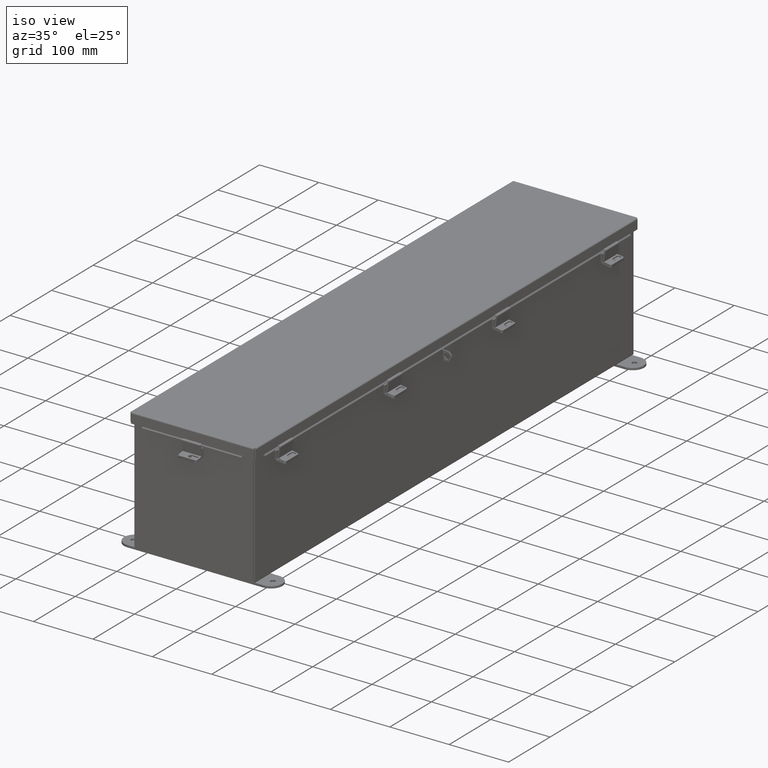
[diagram: clean part render]
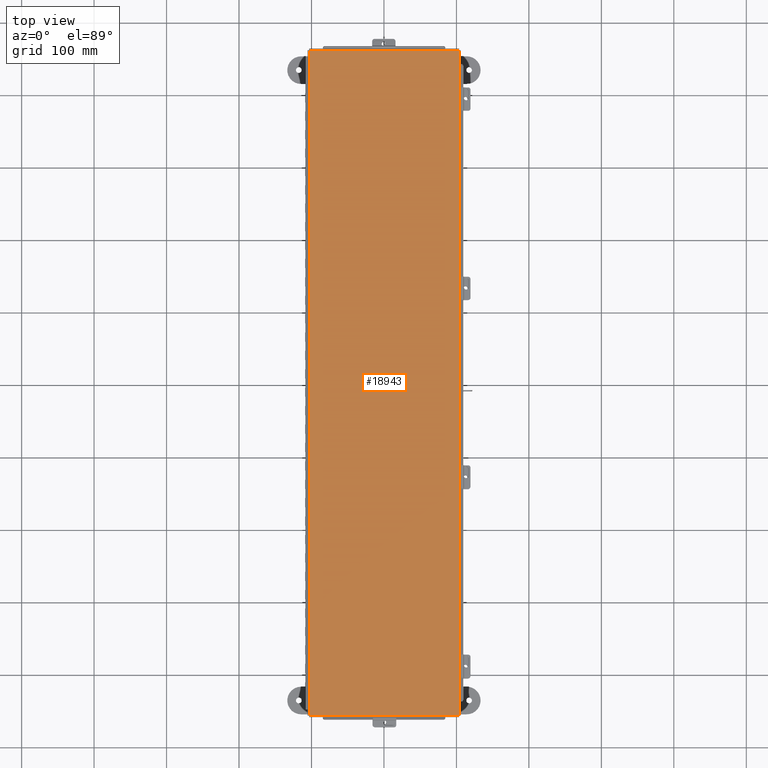
[diagram: tour spotlight — one face highlighted and labeled with its STEP entity id]
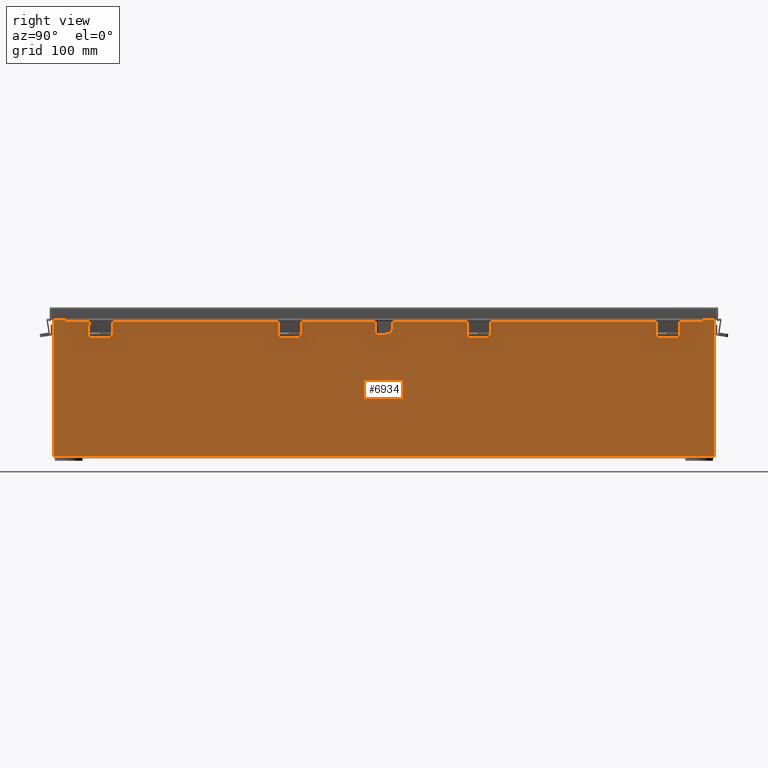
[diagram: tour spotlight — one face highlighted and labeled with its STEP entity id]
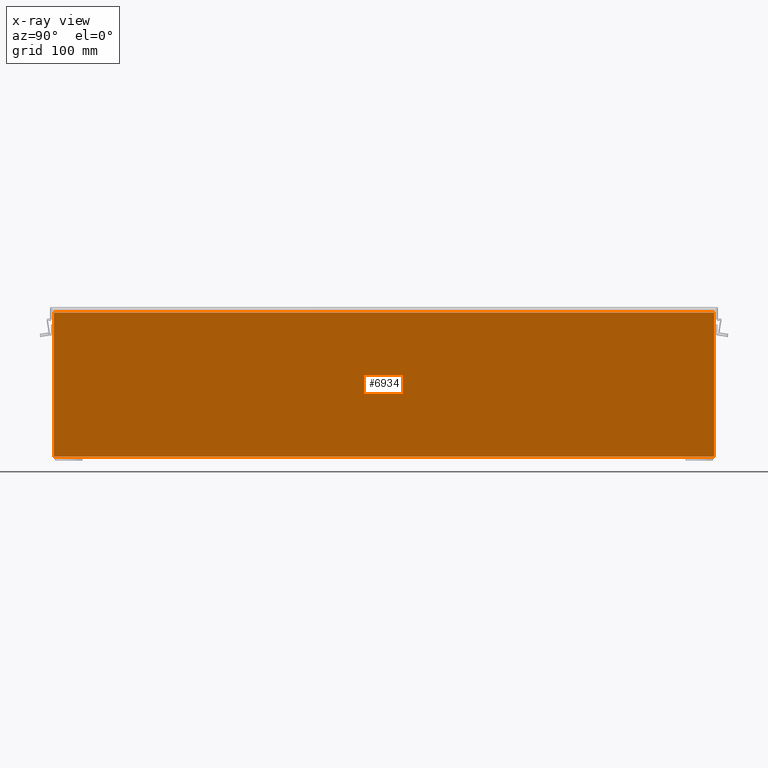
[diagram: x-ray of the same camera — body ghosted, this tour face saturated]
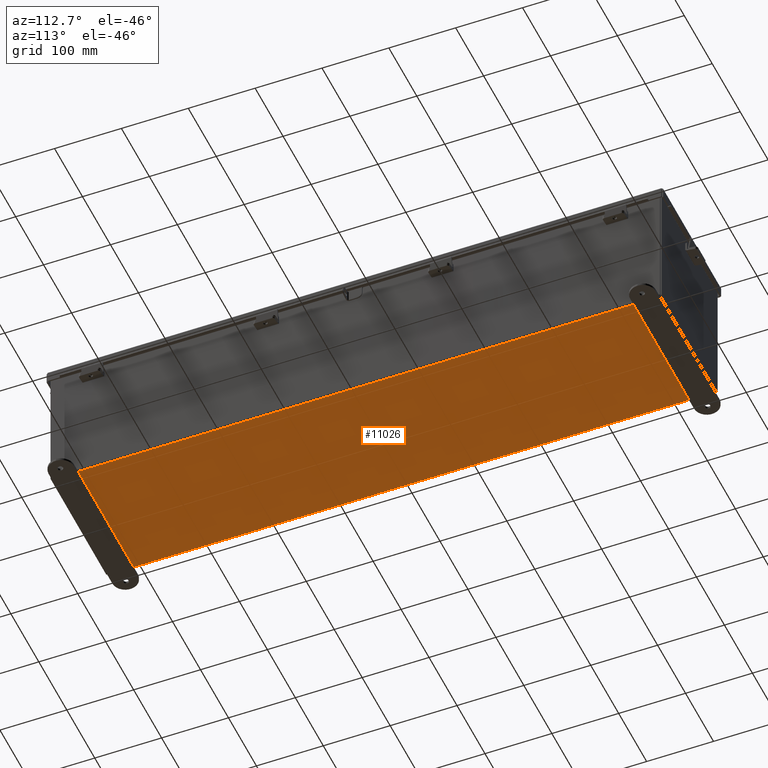
[diagram: tour spotlight — one face highlighted and labeled with its STEP entity id]
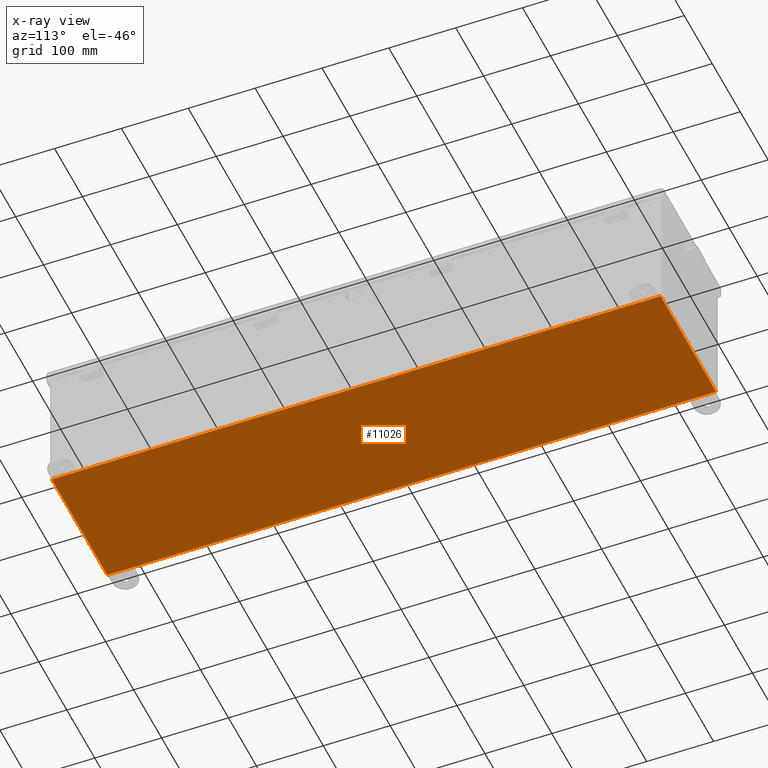
[diagram: x-ray of the same camera — body ghosted, this tour face saturated]
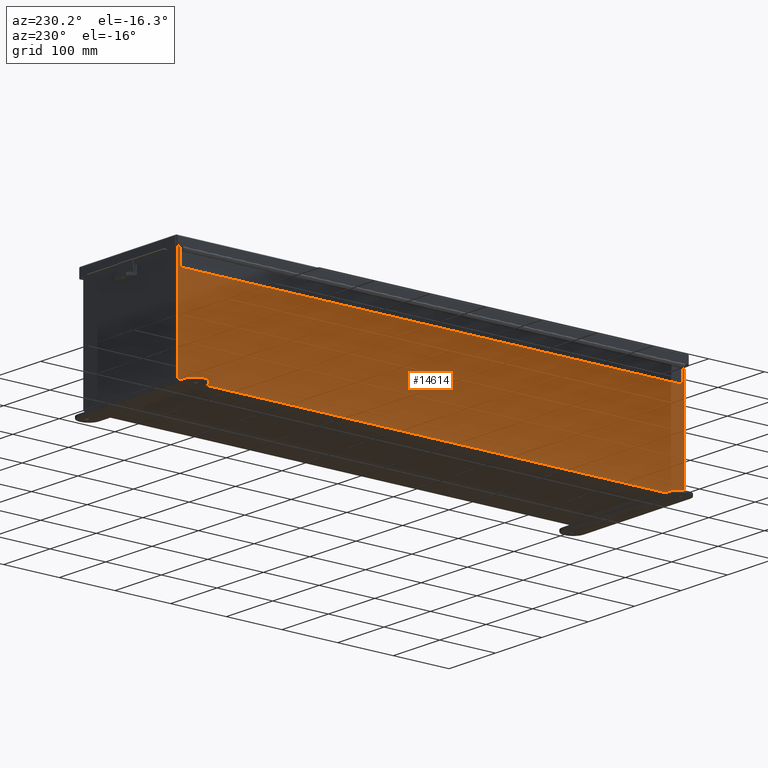
[diagram: tour spotlight — one face highlighted and labeled with its STEP entity id]
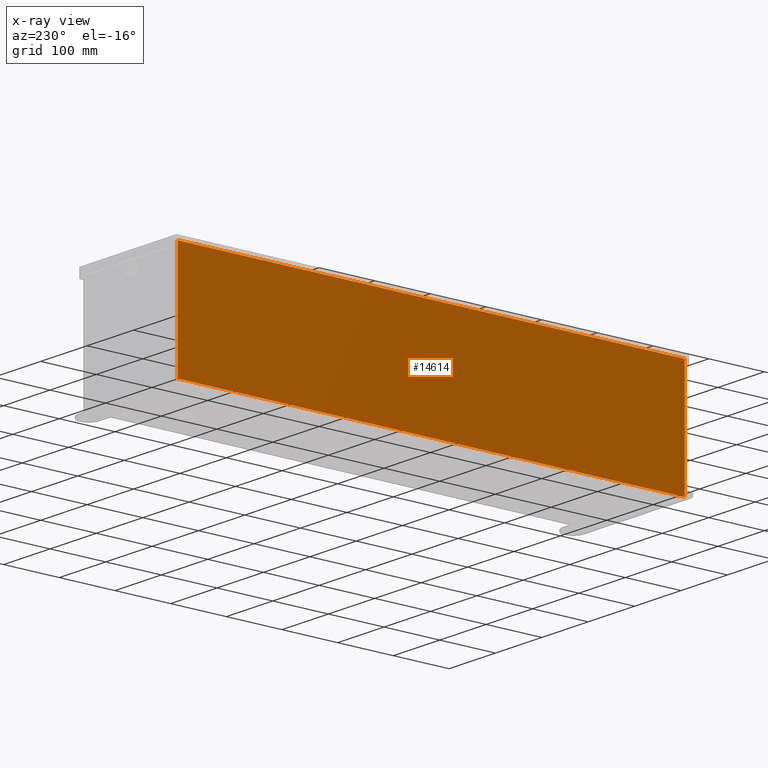
[diagram: x-ray of the same camera — body ghosted, this tour face saturated]
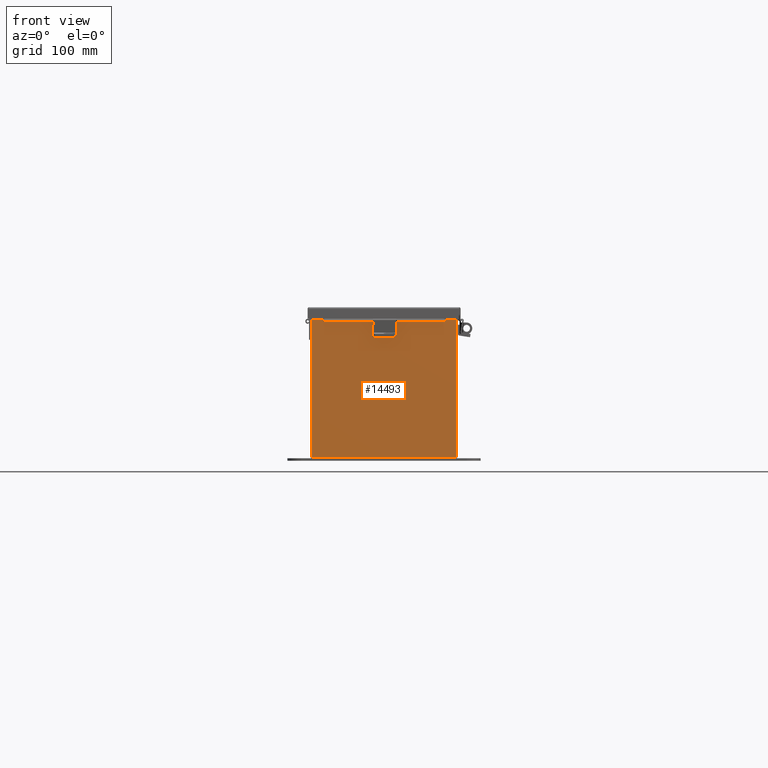
[diagram: tour spotlight — one face highlighted and labeled with its STEP entity id]
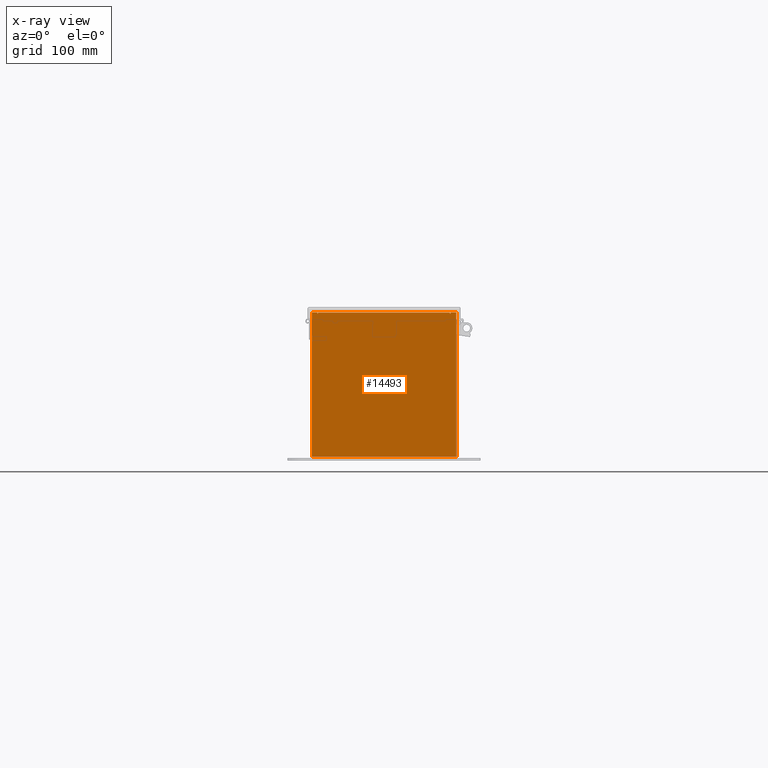
[diagram: x-ray of the same camera — body ghosted, this tour face saturated]
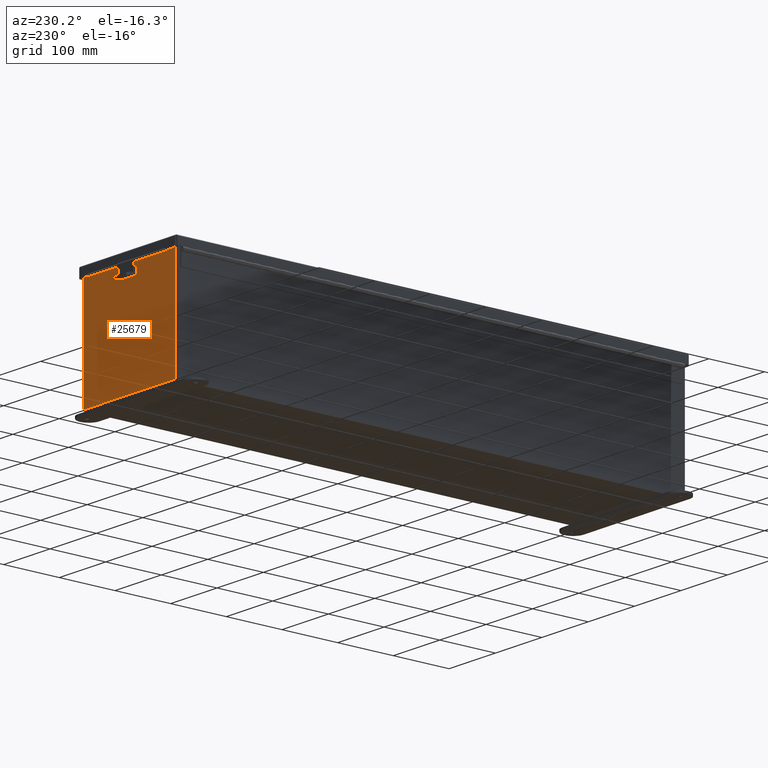
[diagram: tour spotlight — one face highlighted and labeled with its STEP entity id]
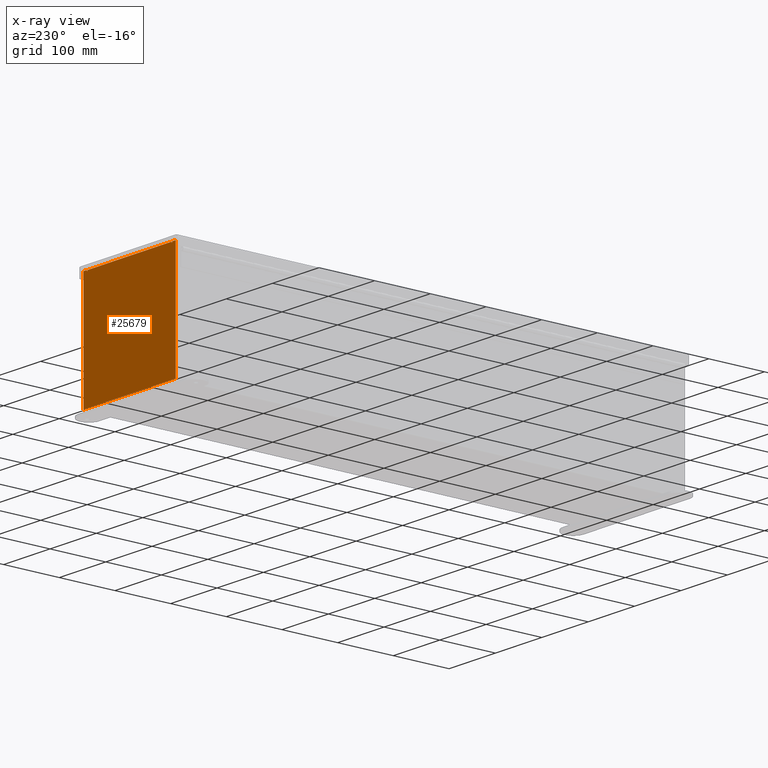
[diagram: x-ray of the same camera — body ghosted, this tour face saturated]
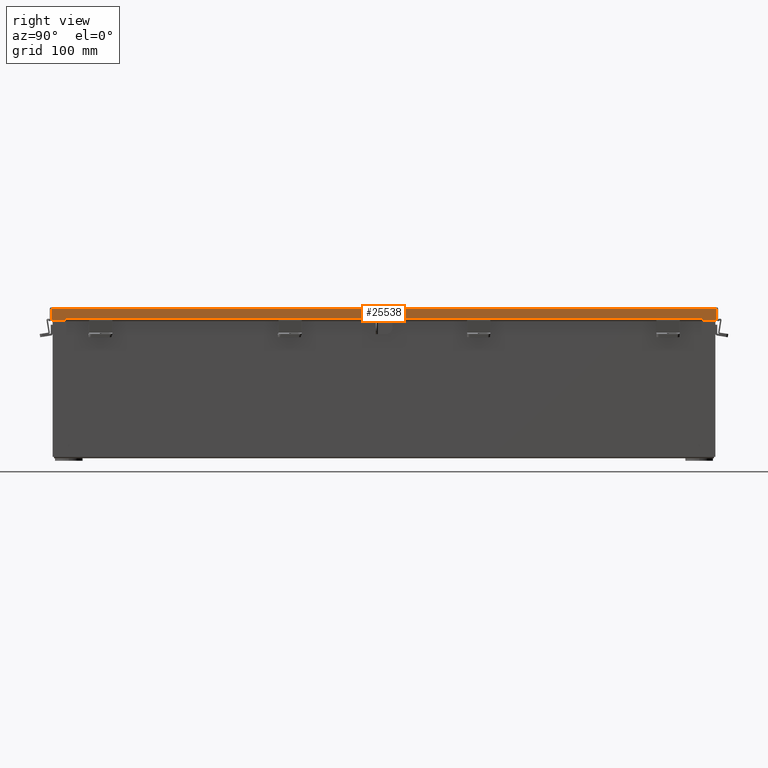
[diagram: tour spotlight — one face highlighted and labeled with its STEP entity id]
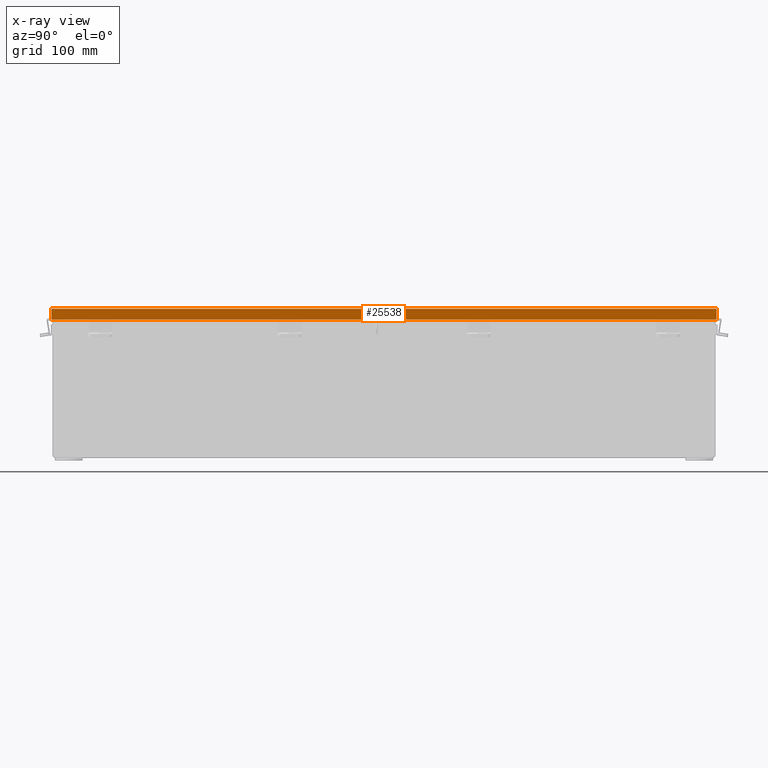
[diagram: x-ray of the same camera — body ghosted, this tour face saturated]
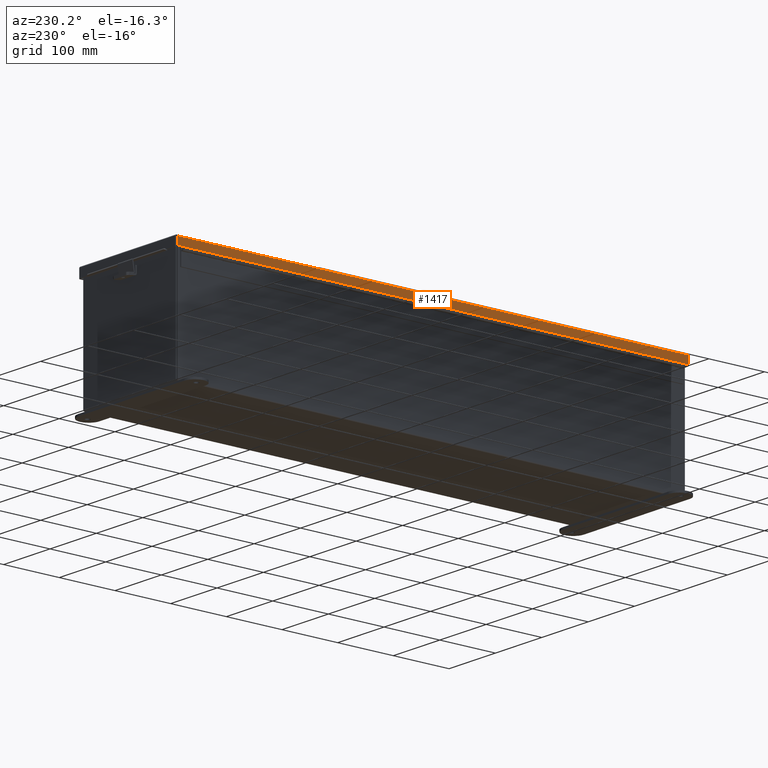
[diagram: tour spotlight — one face highlighted and labeled with its STEP entity id]
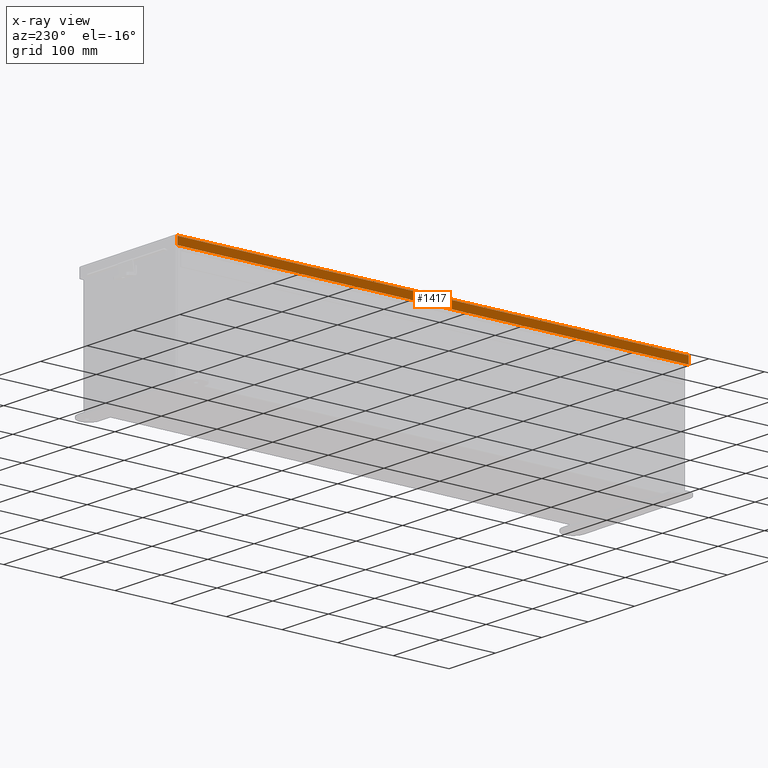
[diagram: x-ray of the same camera — body ghosted, this tour face saturated]
A machine part: a face-by-face anatomy tour. The part has 1160 B-rep faces; the first image is the clean iso view, then the 8 largest visible faces are spotlighted one at a time (largest first), each with its STEP entity span.

Face 1 — top view, entity #18943. In plain terms, the highlighted planar face has unit normal (-0, 0, 1).
Definition (entity closure, byte-faithful):
#204 = VECTOR ( 'NONE', #6262, 39.37007874015748100 ) ;
#949 = CARTESIAN_POINT ( 'NONE',  ( -4.068550000000051600, -18.06854999999997300, -0.07469999999999907300 ) ) ;
#1108 = VECTOR ( 'NONE', #22519, 39.37007874015748100 ) ;
#1423 = CARTESIAN_POINT ( 'NONE',  ( 4.074478932188162300, -18.06854999999997000, -0.07470000000000015500 ) ) ;
#1862 = FACE_OUTER_BOUND ( 'NONE', #28355, .T. ) ;
#2316 = EDGE_CURVE ( 'NONE', #9988, #11167, #7880, .T. ) ;
#3558 = LINE ( 'NONE', #1423, #26515 ) ;
#3682 = VECTOR ( 'NONE', #9171, 39.37007874015748100 ) ;
#4677 = DIRECTION ( 'NONE',  ( 3.944304526105027500E-031, -2.393699809279988100E-029, -1.000000000000000000 ) ) ;
#6262 = DIRECTION ( 'NONE',  ( 1.340736027574110600E-030, -1.000000000000000000, -2.396164999608823400E-029 ) ) ;
#7405 = AXIS2_PLACEMENT_3D ( 'NONE', #25231, #4677, #20688 ) ;
#7704 = ORIENTED_EDGE ( 'NONE', *, *, #11254, .T. ) ;
#7880 = LINE ( 'NONE', #15617, #1108 ) ;
#8506 = EDGE_CURVE ( 'NONE', #11167, #25861, #28062, .T. ) ;
#9171 = DIRECTION ( 'NONE',  ( 1.000000000000000000, -1.242128414421549100E-030, 3.944304526105027500E-031 ) ) ;
#9397 = ORIENTED_EDGE ( 'NONE', *, *, #8506, .T. ) ;
#9988 = VERTEX_POINT ( 'NONE', #949 ) ;
#10899 = ORIENTED_EDGE ( 'NONE', *, *, #21700, .T. ) ;
#11167 = VERTEX_POINT ( 'NONE', #15007 ) ;
#11254 = EDGE_CURVE ( 'NONE', #25861, #28391, #18504, .T. ) ;
#11451 = PLANE ( 'NONE',  #7405 ) ;
#15007 = CARTESIAN_POINT ( 'NONE',  ( -4.068550000000051600, 18.06855000000003000, -0.07470000000000015500 ) ) ;
#15617 = CARTESIAN_POINT ( 'NONE',  ( -4.068550000000051600, -18.07447893218810400, -0.07469999999999907300 ) ) ;
#17462 = DIRECTION ( 'NONE',  ( -1.000000000000000000, 1.242128414421549100E-030, -3.944304526105027500E-031 ) ) ;
#18504 = LINE ( 'NONE', #29214, #204 ) ;
#18943 = ADVANCED_FACE ( 'NONE', ( #1862 ), #11451, .T. ) ;
#19112 = ORIENTED_EDGE ( 'NONE', *, *, #2316, .T. ) ;
#20688 = DIRECTION ( 'NONE',  ( -1.000000000000000000, 1.242128414421549100E-030, -3.944304526105027500E-031 ) ) ;
#21700 = EDGE_CURVE ( 'NONE', #28391, #9988, #3558, .T. ) ;
#22519 = DIRECTION ( 'NONE',  ( -1.340736027574110600E-030, 1.000000000000000000, 2.396164999608823400E-029 ) ) ;
#23031 = CARTESIAN_POINT ( 'NONE',  ( -4.074478932188187100, 18.06855000000003000, -0.07470000000000015500 ) ) ;
#25231 = CARTESIAN_POINT ( 'NONE',  ( 0.0000000000000000000, 0.0000000000000000000, -0.07470000000000015500 ) ) ;
#25861 = VERTEX_POINT ( 'NONE', #26134 ) ;
#26134 = CARTESIAN_POINT ( 'NONE',  ( 4.068550000000027600, 18.06855000000003000, -0.07470000000000125200 ) ) ;
#26515 = VECTOR ( 'NONE', #17462, 39.37007874015748100 ) ;
#28062 = LINE ( 'NONE', #23031, #3682 ) ;
#28355 = EDGE_LOOP ( 'NONE', ( #9397, #7704, #10899, #19112 ) ) ;
#28391 = VERTEX_POINT ( 'NONE', #29418 ) ;
#29214 = CARTESIAN_POINT ( 'NONE',  ( 4.068550000000027600, 18.07447893218816800, -0.07470000000000125200 ) ) ;
#29418 = CARTESIAN_POINT ( 'NONE',  ( 4.068550000000027600, -18.06854999999997000, -0.07470000000000015500 ) ) ;

Face 2 — right view, entity #6934. An x-ray twin of the same camera follows (body ghosted, this face saturated) — the face is partly hidden behind the body. In plain terms, the highlighted planar face has unit normal (-1, 0, 0).
Definition (entity closure, byte-faithful):
#405 = CARTESIAN_POINT ( 'NONE',  ( 4.000000000000001800, -17.92530000000001100, 0.01299999999999984300 ) ) ;
#1727 = DIRECTION ( 'NONE',  ( -3.479795166820706300E-015, 0.0000000000000000000, -1.000000000000000000 ) ) ;
#2047 = AXIS2_PLACEMENT_3D ( 'NONE', #27385, #9197, #25282 ) ;
#3303 = EDGE_LOOP ( 'NONE', ( #5680, #19615, #24678, #10176 ) ) ;
#4702 = CARTESIAN_POINT ( 'NONE',  ( 4.000000000000001800, 17.92529999999999300, -1.417999849211356600E-014 ) ) ;
#4844 = CARTESIAN_POINT ( 'NONE',  ( 4.000000000000001800, -17.92530000000001100, 0.01300000000000011600 ) ) ;
#5435 = VECTOR ( 'NONE', #18756, 39.37007874015748100 ) ;
#5680 = ORIENTED_EDGE ( 'NONE', *, *, #25814, .T. ) ;
#6934 = ADVANCED_FACE ( 'NONE', ( #15175 ), #18355, .F. ) ;
#7689 = EDGE_CURVE ( 'NONE', #15383, #9812, #29466, .T. ) ;
#7929 = EDGE_CURVE ( 'NONE', #17127, #9812, #11492, .T. ) ;
#8493 = CARTESIAN_POINT ( 'NONE',  ( 4.000000000000001800, -17.92530000000001100, -1.417999849211356600E-014 ) ) ;
#8497 = EDGE_CURVE ( 'NONE', #17127, #29572, #28768, .T. ) ;
#9197 = DIRECTION ( 'NONE',  ( -1.000000000000000000, 0.0000000000000000000, 3.479795166820705900E-015 ) ) ;
#9812 = VERTEX_POINT ( 'NONE', #4844 ) ;
#9870 = CARTESIAN_POINT ( 'NONE',  ( 4.000000000000029300, 17.92529999999999300, 7.837599999999999200 ) ) ;
#10176 = ORIENTED_EDGE ( 'NONE', *, *, #8497, .T. ) ;
#11492 = LINE ( 'NONE', #405, #5435 ) ;
#15175 = FACE_OUTER_BOUND ( 'NONE', #3303, .T. ) ;
#15206 = CARTESIAN_POINT ( 'NONE',  ( 4.000000000000029300, -17.92530000000001100, 7.837599999999999200 ) ) ;
#15383 = VERTEX_POINT ( 'NONE', #15206 ) ;
#16337 = LINE ( 'NONE', #9870, #22431 ) ;
#17127 = VERTEX_POINT ( 'NONE', #25226 ) ;
#18355 = PLANE ( 'NONE',  #2047 ) ;
#18430 = DIRECTION ( 'NONE',  ( 3.479795166820706300E-015, 0.0000000000000000000, 1.000000000000000000 ) ) ;
#18756 = DIRECTION ( 'NONE',  ( -5.303270486319196900E-032, -1.000000000000000000, -1.524018004532289100E-017 ) ) ;
#19615 = ORIENTED_EDGE ( 'NONE', *, *, #7689, .T. ) ;
#22431 = VECTOR ( 'NONE', #23616, 39.37007874015748100 ) ;
#23374 = VECTOR ( 'NONE', #1727, 39.37007874015748100 ) ;
#23382 = VECTOR ( 'NONE', #18430, 39.37007874015748100 ) ;
#23616 = DIRECTION ( 'NONE',  ( -0.0000000000000000000, -1.000000000000000000, -0.0000000000000000000 ) ) ;
#24678 = ORIENTED_EDGE ( 'NONE', *, *, #7929, .F. ) ;
#25226 = CARTESIAN_POINT ( 'NONE',  ( 4.000000000000001800, 17.92529999999999300, 0.01300000000000039000 ) ) ;
#25282 = DIRECTION ( 'NONE',  ( 3.479795166820705900E-015, 0.0000000000000000000, 1.000000000000000000 ) ) ;
#25814 = EDGE_CURVE ( 'NONE', #29572, #15383, #16337, .T. ) ;
#27184 = CARTESIAN_POINT ( 'NONE',  ( 4.000000000000029300, 17.92529999999998200, 7.837599999999999200 ) ) ;
#27385 = CARTESIAN_POINT ( 'NONE',  ( 4.000000000000001800, 0.0000000000000000000, -1.417999849211356600E-014 ) ) ;
#28768 = LINE ( 'NONE', #4702, #23382 ) ;
#29466 = LINE ( 'NONE', #8493, #23374 ) ;
#29572 = VERTEX_POINT ( 'NONE', #27184 ) ;

Face 3 — auxiliary view, entity #11026. An x-ray twin of the same camera follows (body ghosted, this face saturated) — the face is partly hidden behind the body. In plain terms, the highlighted planar face has unit normal (0, 0, -1).
Definition (entity closure, byte-faithful):
#127 = LINE ( 'NONE', #23900, #23826 ) ;
#763 = EDGE_LOOP ( 'NONE', ( #18517, #26983, #990, #27154 ) ) ;
#990 = ORIENTED_EDGE ( 'NONE', *, *, #8816, .F. ) ;
#1263 = CARTESIAN_POINT ( 'NONE',  ( -3.912299999999997400, -17.92530000000001100, -0.07470000000000022500 ) ) ;
#3304 = LINE ( 'NONE', #7948, #8621 ) ;
#3506 = DIRECTION ( 'NONE',  ( 1.000000000000000000, 0.0000000000000000000, 0.0000000000000000000 ) ) ;
#4044 = VERTEX_POINT ( 'NONE', #9169 ) ;
#5305 = PLANE ( 'NONE',  #24739 ) ;
#6600 = EDGE_CURVE ( 'NONE', #10334, #21964, #127, .T. ) ;
#7948 = CARTESIAN_POINT ( 'NONE',  ( -3.999999999999997800, -17.92530000000001100, -0.07470000000000000300 ) ) ;
#8128 = DIRECTION ( 'NONE',  ( -0.0000000000000000000, 1.000000000000000000, -0.0000000000000000000 ) ) ;
#8621 = VECTOR ( 'NONE', #3506, 39.37007874015748100 ) ;
#8816 = EDGE_CURVE ( 'NONE', #20452, #4044, #3304, .T. ) ;
#9169 = CARTESIAN_POINT ( 'NONE',  ( 3.912300000000001900, -17.92530000000001100, -0.07470000000000000300 ) ) ;
#9590 = CARTESIAN_POINT ( 'NONE',  ( 3.912300000000001900, 17.92529999999999300, -0.07469999999999966900 ) ) ;
#9899 = DIRECTION ( 'NONE',  ( -1.000000000000000000, 0.0000000000000000000, -0.0000000000000000000 ) ) ;
#10334 = VERTEX_POINT ( 'NONE', #19071 ) ;
#10783 = VECTOR ( 'NONE', #8128, 39.37007874015748100 ) ;
#11026 = ADVANCED_FACE ( 'NONE', ( #23544 ), #5305, .T. ) ;
#17623 = LINE ( 'NONE', #1263, #10783 ) ;
#18517 = ORIENTED_EDGE ( 'NONE', *, *, #6600, .F. ) ;
#19071 = CARTESIAN_POINT ( 'NONE',  ( 3.912300000000001900, 17.92529999999999300, -0.07469999999999966900 ) ) ;
#19255 = EDGE_CURVE ( 'NONE', #20452, #21964, #17623, .T. ) ;
#20452 = VERTEX_POINT ( 'NONE', #21961 ) ;
#21349 = CARTESIAN_POINT ( 'NONE',  ( 0.0000000000000000000, 0.0000000000000000000, -0.07470000000000000300 ) ) ;
#21520 = LINE ( 'NONE', #9590, #27610 ) ;
#21704 = DIRECTION ( 'NONE',  ( -1.000000000000000000, -0.0000000000000000000, -0.0000000000000000000 ) ) ;
#21961 = CARTESIAN_POINT ( 'NONE',  ( -3.912299999999997400, -17.92530000000001100, -0.07470000000000022500 ) ) ;
#21964 = VERTEX_POINT ( 'NONE', #27574 ) ;
#23236 = DIRECTION ( 'NONE',  ( -0.0000000000000000000, -1.000000000000000000, -0.0000000000000000000 ) ) ;
#23544 = FACE_OUTER_BOUND ( 'NONE', #763, .T. ) ;
#23642 = DIRECTION ( 'NONE',  ( 0.0000000000000000000, 0.0000000000000000000, -1.000000000000000000 ) ) ;
#23826 = VECTOR ( 'NONE', #21704, 39.37007874015748100 ) ;
#23900 = CARTESIAN_POINT ( 'NONE',  ( -3.999999999999997800, 17.92529999999999300, -0.07470000000000000300 ) ) ;
#24739 = AXIS2_PLACEMENT_3D ( 'NONE', #21349, #23642, #9899 ) ;
#26983 = ORIENTED_EDGE ( 'NONE', *, *, #29725, .T. ) ;
#27154 = ORIENTED_EDGE ( 'NONE', *, *, #19255, .T. ) ;
#27574 = CARTESIAN_POINT ( 'NONE',  ( -3.912299999999997400, 17.92529999999999300, -0.07470000000000000300 ) ) ;
#27610 = VECTOR ( 'NONE', #23236, 39.37007874015748100 ) ;
#29725 = EDGE_CURVE ( 'NONE', #10334, #4044, #21520, .T. ) ;

Face 4 — auxiliary view, entity #14614. An x-ray twin of the same camera follows (body ghosted, this face saturated) — the face is partly hidden behind the body. In plain terms, the highlighted planar face has unit normal (1, 0, 0).
Definition (entity closure, byte-faithful):
#1181 = EDGE_CURVE ( 'NONE', #15615, #20794, #25149, .T. ) ;
#1612 = CARTESIAN_POINT ( 'NONE',  ( -3.999999999999997800, 17.92529999999999300, -1.417999849211356600E-014 ) ) ;
#3851 = EDGE_CURVE ( 'NONE', #20794, #5540, #4260, .T. ) ;
#3955 = LINE ( 'NONE', #18841, #8545 ) ;
#3976 = FACE_OUTER_BOUND ( 'NONE', #20912, .T. ) ;
#4260 = LINE ( 'NONE', #1612, #11040 ) ;
#5158 = ORIENTED_EDGE ( 'NONE', *, *, #1181, .T. ) ;
#5540 = VERTEX_POINT ( 'NONE', #14611 ) ;
#5632 = DIRECTION ( 'NONE',  ( 1.000000000000000000, 0.0000000000000000000, 3.479795166820705900E-015 ) ) ;
#5882 = EDGE_CURVE ( 'NONE', #10852, #15615, #11274, .T. ) ;
#7375 = DIRECTION ( 'NONE',  ( -5.303270486319196900E-032, 1.000000000000000000, 1.524018004532289100E-017 ) ) ;
#8545 = VECTOR ( 'NONE', #7375, 39.37007874015748100 ) ;
#9525 = ORIENTED_EDGE ( 'NONE', *, *, #3851, .T. ) ;
#9677 = CARTESIAN_POINT ( 'NONE',  ( -4.000000000000024900, 17.92529999999999300, 7.837599999999999200 ) ) ;
#10852 = VERTEX_POINT ( 'NONE', #27565 ) ;
#11040 = VECTOR ( 'NONE', #17641, 39.37007874015748100 ) ;
#11274 = LINE ( 'NONE', #23735, #22067 ) ;
#12560 = CARTESIAN_POINT ( 'NONE',  ( -4.000000000000025800, -17.92530000000001100, 7.837599999999999200 ) ) ;
#12707 = ORIENTED_EDGE ( 'NONE', *, *, #29739, .F. ) ;
#14611 = CARTESIAN_POINT ( 'NONE',  ( -3.999999999999997800, 17.92529999999999300, 0.01299999999999956900 ) ) ;
#14614 = ADVANCED_FACE ( 'NONE', ( #3976 ), #14736, .F. ) ;
#14736 = PLANE ( 'NONE',  #29424 ) ;
#14819 = ORIENTED_EDGE ( 'NONE', *, *, #5882, .T. ) ;
#15615 = VERTEX_POINT ( 'NONE', #18292 ) ;
#17103 = DIRECTION ( 'NONE',  ( 0.0000000000000000000, 1.000000000000000000, 0.0000000000000000000 ) ) ;
#17641 = DIRECTION ( 'NONE',  ( 3.479795166820706300E-015, 0.0000000000000000000, -1.000000000000000000 ) ) ;
#18292 = CARTESIAN_POINT ( 'NONE',  ( -4.000000000000025800, -17.92529999999999600, 7.837599999999999200 ) ) ;
#18841 = CARTESIAN_POINT ( 'NONE',  ( -3.999999999999997800, 17.92529999999999300, 0.01299999999999984300 ) ) ;
#19348 = CARTESIAN_POINT ( 'NONE',  ( -3.999999999999997800, 0.0000000000000000000, -1.417999849211356600E-014 ) ) ;
#20794 = VERTEX_POINT ( 'NONE', #9677 ) ;
#20912 = EDGE_LOOP ( 'NONE', ( #5158, #9525, #12707, #14819 ) ) ;
#21686 = DIRECTION ( 'NONE',  ( 3.479795166820705900E-015, 0.0000000000000000000, -1.000000000000000000 ) ) ;
#22067 = VECTOR ( 'NONE', #26058, 39.37007874015748100 ) ;
#23735 = CARTESIAN_POINT ( 'NONE',  ( -3.999999999999997800, -17.92530000000001100, -9.185838878696085100E-015 ) ) ;
#25149 = LINE ( 'NONE', #12560, #29081 ) ;
#26058 = DIRECTION ( 'NONE',  ( -3.479795166820706300E-015, 2.783836133456565100E-016, 1.000000000000000000 ) ) ;
#27565 = CARTESIAN_POINT ( 'NONE',  ( -3.999999999999997800, -17.92530000000001100, 0.01299999999999929700 ) ) ;
#29081 = VECTOR ( 'NONE', #17103, 39.37007874015748100 ) ;
#29424 = AXIS2_PLACEMENT_3D ( 'NONE', #19348, #5632, #21686 ) ;
#29739 = EDGE_CURVE ( 'NONE', #10852, #5540, #3955, .T. ) ;

Face 5 — front view, entity #14493. An x-ray twin of the same camera follows (body ghosted, this face saturated) — the face is partly hidden behind the body. In plain terms, the highlighted planar face has unit normal (-0, 1, -0).
Definition (entity closure, byte-faithful):
#100 = DIRECTION ( 'NONE',  ( -1.107301242518083700E-030, -1.000000000000000000, -0.0000000000000000000 ) ) ;
#772 = DIRECTION ( 'NONE',  ( 0.0000000000000000000, 0.0000000000000000000, 1.000000000000000000 ) ) ;
#1281 = LINE ( 'NONE', #4753, #25691 ) ;
#1297 = CARTESIAN_POINT ( 'NONE',  ( 3.600974999999999100, 0.0000000000000000000, 3.874949999999999700 ) ) ;
#2076 = CARTESIAN_POINT ( 'NONE',  ( -3.619650000000010200, 0.0000000000000000000, 0.0000000000000000000 ) ) ;
#2353 = EDGE_CURVE ( 'NONE', #3240, #27664, #5775, .T. ) ;
#2452 = EDGE_CURVE ( 'NONE', #8386, #15148, #2898, .T. ) ;
#2898 = LINE ( 'NONE', #18396, #20442 ) ;
#3071 = CARTESIAN_POINT ( 'NONE',  ( -3.582300000000000000, 0.0000000000000000000, 3.874949999999997500 ) ) ;
#3240 = VERTEX_POINT ( 'NONE', #27298 ) ;
#3616 = DIRECTION ( 'NONE',  ( 0.0000000000000000000, 0.0000000000000000000, -1.000000000000000000 ) ) ;
#3731 = CIRCLE ( 'NONE', #26235, 0.01867500000000003900 ) ;
#4411 = VERTEX_POINT ( 'NONE', #3071 ) ;
#4502 = VECTOR ( 'NONE', #772, 39.37007874015748100 ) ;
#4753 = CARTESIAN_POINT ( 'NONE',  ( -3.925300000000010200, 0.0000000000000000000, 3.925299999999999600 ) ) ;
#5166 = ORIENTED_EDGE ( 'NONE', *, *, #9664, .F. ) ;
#5775 = LINE ( 'NONE', #2076, #12561 ) ;
#5881 = EDGE_CURVE ( 'NONE', #7838, #23045, #22771, .T. ) ;
#6154 = CARTESIAN_POINT ( 'NONE',  ( -3.582300000000009800, 0.0000000000000000000, 3.912299999999998800 ) ) ;
#7274 = EDGE_LOOP ( 'NONE', ( #10723, #5166, #20460, #8210, #22823, #9353, #19276, #9531, #15315, #18402, #22802, #19887 ) ) ;
#7471 = CARTESIAN_POINT ( 'NONE',  ( 3.925299999999989400, 0.0000000000000000000, -3.925299999999999600 ) ) ;
#7557 = EDGE_CURVE ( 'NONE', #23364, #19345, #16216, .T. ) ;
#7561 = CARTESIAN_POINT ( 'NONE',  ( 3.582299999999989400, 0.0000000000000000000, 9.834652777191348400E-015 ) ) ;
#7671 = CARTESIAN_POINT ( 'NONE',  ( -3.925300000000010200, 0.0000000000000000000, -3.925299999999999600 ) ) ;
#7838 = VERTEX_POINT ( 'NONE', #25280 ) ;
#7871 = AXIS2_PLACEMENT_3D ( 'NONE', #20643, #100, #16151 ) ;
#8210 = ORIENTED_EDGE ( 'NONE', *, *, #17550, .T. ) ;
#8213 = CARTESIAN_POINT ( 'NONE',  ( -3.582300000000009800, 0.0000000000000000000, 3.912299999999998800 ) ) ;
#8386 = VERTEX_POINT ( 'NONE', #20228 ) ;
#8500 = CIRCLE ( 'NONE', #13734, 0.01867500000000003900 ) ;
#8643 = VECTOR ( 'NONE', #14959, 39.37007874015748100 ) ;
#9353 = ORIENTED_EDGE ( 'NONE', *, *, #27059, .F. ) ;
#9531 = ORIENTED_EDGE ( 'NONE', *, *, #11450, .T. ) ;
#9664 = EDGE_CURVE ( 'NONE', #4411, #3240, #8500, .T. ) ;
#10461 = CARTESIAN_POINT ( 'NONE',  ( -3.619650000000010200, 0.0000000000000000000, 3.925299999999999600 ) ) ;
#10723 = ORIENTED_EDGE ( 'NONE', *, *, #2353, .F. ) ;
#10741 = CARTESIAN_POINT ( 'NONE',  ( -3.925300000000010200, 0.0000000000000000000, 3.925299999999999600 ) ) ;
#10782 = VECTOR ( 'NONE', #19684, 39.37007874015748100 ) ;
#10871 = LINE ( 'NONE', #12931, #22369 ) ;
#11017 = CARTESIAN_POINT ( 'NONE',  ( -3.582300000000009800, 0.0000000000000000000, 0.0000000000000000000 ) ) ;
#11450 = EDGE_CURVE ( 'NONE', #27589, #8386, #1281, .T. ) ;
#12561 = VECTOR ( 'NONE', #18106, 39.37007874015748100 ) ;
#12675 = EDGE_CURVE ( 'NONE', #27589, #15513, #10871, .T. ) ;
#12931 = CARTESIAN_POINT ( 'NONE',  ( 3.619649999999905000, 0.0000000000000000000, -7.867722221753078700E-014 ) ) ;
#13437 = CARTESIAN_POINT ( 'NONE',  ( -3.600975000000000000, 0.0000000000000000000, 3.874949999999997500 ) ) ;
#13734 = AXIS2_PLACEMENT_3D ( 'NONE', #13437, #29483, #15756 ) ;
#14139 = LINE ( 'NONE', #8213, #25640 ) ;
#14402 = EDGE_CURVE ( 'NONE', #15148, #23364, #15074, .T. ) ;
#14493 = ADVANCED_FACE ( 'NONE', ( #25121 ), #27585, .F. ) ;
#14959 = DIRECTION ( 'NONE',  ( 0.0000000000000000000, 0.0000000000000000000, 1.000000000000000000 ) ) ;
#15074 = LINE ( 'NONE', #29587, #21915 ) ;
#15148 = VERTEX_POINT ( 'NONE', #7471 ) ;
#15315 = ORIENTED_EDGE ( 'NONE', *, *, #2452, .T. ) ;
#15513 = VERTEX_POINT ( 'NONE', #24833 ) ;
#15756 = DIRECTION ( 'NONE',  ( 0.0000000000000000000, 0.0000000000000000000, -1.000000000000000000 ) ) ;
#15857 = DIRECTION ( 'NONE',  ( -1.000000000000000000, -1.107301242518083700E-030, 0.0000000000000000000 ) ) ;
#16151 = DIRECTION ( 'NONE',  ( 0.0000000000000000000, 0.0000000000000000000, -1.000000000000000000 ) ) ;
#16216 = LINE ( 'NONE', #21891, #8643 ) ;
#16896 = LINE ( 'NONE', #26533, #10782 ) ;
#17335 = DIRECTION ( 'NONE',  ( 1.107301242518083700E-030, 1.000000000000000000, -0.0000000000000000000 ) ) ;
#17550 = EDGE_CURVE ( 'NONE', #28794, #23045, #14139, .T. ) ;
#18106 = DIRECTION ( 'NONE',  ( 0.0000000000000000000, 0.0000000000000000000, 1.000000000000000000 ) ) ;
#18396 = CARTESIAN_POINT ( 'NONE',  ( 3.925299999999989400, 0.0000000000000000000, 3.925299999999999600 ) ) ;
#18402 = ORIENTED_EDGE ( 'NONE', *, *, #14402, .T. ) ;
#18477 = DIRECTION ( 'NONE',  ( 1.000000000000000000, 1.107301242518083700E-030, 0.0000000000000000000 ) ) ;
#19276 = ORIENTED_EDGE ( 'NONE', *, *, #12675, .F. ) ;
#19345 = VERTEX_POINT ( 'NONE', #10741 ) ;
#19397 = CARTESIAN_POINT ( 'NONE',  ( 3.619649999999990300, 0.0000000000000000000, 3.925300000000000900 ) ) ;
#19684 = DIRECTION ( 'NONE',  ( 1.000000000000000000, 1.107301242518083700E-030, 0.0000000000000000000 ) ) ;
#19774 = DIRECTION ( 'NONE',  ( 1.000000000000000000, 1.107301242518083700E-030, -0.0000000000000000000 ) ) ;
#19887 = ORIENTED_EDGE ( 'NONE', *, *, #28709, .T. ) ;
#20077 = EDGE_CURVE ( 'NONE', #28794, #4411, #26967, .T. ) ;
#20228 = CARTESIAN_POINT ( 'NONE',  ( 3.925299999999989400, 0.0000000000000000000, 3.925299999999999600 ) ) ;
#20442 = VECTOR ( 'NONE', #27623, 39.37007874015748100 ) ;
#20460 = ORIENTED_EDGE ( 'NONE', *, *, #20077, .F. ) ;
#20643 = CARTESIAN_POINT ( 'NONE',  ( 0.0000000000000000000, 0.0000000000000000000, 0.0000000000000000000 ) ) ;
#20825 = VECTOR ( 'NONE', #29373, 39.37007874015748100 ) ;
#21891 = CARTESIAN_POINT ( 'NONE',  ( -3.925300000000010200, 0.0000000000000000000, 3.925299999999999600 ) ) ;
#21915 = VECTOR ( 'NONE', #15857, 39.37007874015748100 ) ;
#22369 = VECTOR ( 'NONE', #26720, 39.37007874015748100 ) ;
#22456 = CARTESIAN_POINT ( 'NONE',  ( 3.582299999999989400, 0.0000000000000000000, 3.912300000000000600 ) ) ;
#22771 = LINE ( 'NONE', #7561, #4502 ) ;
#22802 = ORIENTED_EDGE ( 'NONE', *, *, #7557, .T. ) ;
#22823 = ORIENTED_EDGE ( 'NONE', *, *, #5881, .F. ) ;
#23045 = VERTEX_POINT ( 'NONE', #22456 ) ;
#23364 = VERTEX_POINT ( 'NONE', #7671 ) ;
#24833 = CARTESIAN_POINT ( 'NONE',  ( 3.619649999999999100, 0.0000000000000000000, 3.874949999999999700 ) ) ;
#25121 = FACE_OUTER_BOUND ( 'NONE', #7274, .T. ) ;
#25280 = CARTESIAN_POINT ( 'NONE',  ( 3.582299999999999200, 0.0000000000000000000, 3.874949999999999700 ) ) ;
#25640 = VECTOR ( 'NONE', #19774, 39.37007874015748100 ) ;
#25691 = VECTOR ( 'NONE', #18477, 39.37007874015748100 ) ;
#26235 = AXIS2_PLACEMENT_3D ( 'NONE', #1297, #17335, #3616 ) ;
#26533 = CARTESIAN_POINT ( 'NONE',  ( -3.925300000000010200, 0.0000000000000000000, 3.925299999999999600 ) ) ;
#26720 = DIRECTION ( 'NONE',  ( -2.170286390199978800E-014, -1.774937036747276600E-030, -1.000000000000000000 ) ) ;
#26967 = LINE ( 'NONE', #11017, #20825 ) ;
#27059 = EDGE_CURVE ( 'NONE', #15513, #7838, #3731, .T. ) ;
#27298 = CARTESIAN_POINT ( 'NONE',  ( -3.619650000000000500, 0.0000000000000000000, 3.874950000000000600 ) ) ;
#27585 = PLANE ( 'NONE',  #7871 ) ;
#27589 = VERTEX_POINT ( 'NONE', #19397 ) ;
#27623 = DIRECTION ( 'NONE',  ( 0.0000000000000000000, 0.0000000000000000000, -1.000000000000000000 ) ) ;
#27664 = VERTEX_POINT ( 'NONE', #10461 ) ;
#28709 = EDGE_CURVE ( 'NONE', #19345, #27664, #16896, .T. ) ;
#28794 = VERTEX_POINT ( 'NONE', #6154 ) ;
#29373 = DIRECTION ( 'NONE',  ( 0.0000000000000000000, 0.0000000000000000000, -1.000000000000000000 ) ) ;
#29483 = DIRECTION ( 'NONE',  ( 1.107301242518083700E-030, 1.000000000000000000, -0.0000000000000000000 ) ) ;
#29587 = CARTESIAN_POINT ( 'NONE',  ( -3.925300000000010200, 0.0000000000000000000, -3.925299999999999600 ) ) ;

Face 6 — auxiliary view, entity #25679. An x-ray twin of the same camera follows (body ghosted, this face saturated) — the face is partly hidden behind the body. In plain terms, the highlighted planar face has unit normal (0, -1, 0).
Definition (entity closure, byte-faithful):
#67 = CARTESIAN_POINT ( 'NONE',  ( -3.582300000000000000, 2.185478394931410600E-015, 3.912299999999998800 ) ) ;
#326 = DIRECTION ( 'NONE',  ( -0.0000000000000000000, 1.000000000000000000, -0.0000000000000000000 ) ) ;
#746 = CARTESIAN_POINT ( 'NONE',  ( 3.925299999999999100, 0.0000000000000000000, -3.925300000000000500 ) ) ;
#755 = ORIENTED_EDGE ( 'NONE', *, *, #18558, .T. ) ;
#775 = CARTESIAN_POINT ( 'NONE',  ( 3.619649999999999100, 0.0000000000000000000, 3.874949999999999700 ) ) ;
#840 = ORIENTED_EDGE ( 'NONE', *, *, #7723, .T. ) ;
#842 = AXIS2_PLACEMENT_3D ( 'NONE', #16099, #16202, #2462 ) ;
#901 = CARTESIAN_POINT ( 'NONE',  ( -3.925300000000000500, 0.0000000000000000000, 3.925299999999999600 ) ) ;
#1288 = CARTESIAN_POINT ( 'NONE',  ( -3.619650000000000500, 0.0000000000000000000, 3.874949999999999700 ) ) ;
#1398 = DIRECTION ( 'NONE',  ( 0.0000000000000000000, 0.0000000000000000000, -1.000000000000000000 ) ) ;
#1458 = VECTOR ( 'NONE', #23516, 39.37007874015748100 ) ;
#1547 = EDGE_CURVE ( 'NONE', #5664, #26443, #28012, .T. ) ;
#1850 = VERTEX_POINT ( 'NONE', #12342 ) ;
#2308 = EDGE_CURVE ( 'NONE', #11174, #19871, #20112, .T. ) ;
#2424 = CARTESIAN_POINT ( 'NONE',  ( 3.600974999999999100, 0.0000000000000000000, 3.874949999999999700 ) ) ;
#2462 = DIRECTION ( 'NONE',  ( 0.0000000000000000000, -0.0000000000000000000, -1.000000000000000000 ) ) ;
#2498 = EDGE_CURVE ( 'NONE', #25722, #8694, #19033, .T. ) ;
#2543 = VERTEX_POINT ( 'NONE', #746 ) ;
#2885 = EDGE_CURVE ( 'NONE', #6634, #11174, #27264, .T. ) ;
#2940 = CARTESIAN_POINT ( 'NONE',  ( 3.925299999999999100, 0.0000000000000000000, 3.925299999999999600 ) ) ;
#3006 = VERTEX_POINT ( 'NONE', #28314 ) ;
#3217 = AXIS2_PLACEMENT_3D ( 'NONE', #2424, #18473, #4746 ) ;
#4361 = EDGE_LOOP ( 'NONE', ( #26288, #22854, #20705, #8274, #7729, #23620, #20160, #840, #17348, #6990, #18480, #755 ) ) ;
#4746 = DIRECTION ( 'NONE',  ( 0.0000000000000000000, 0.0000000000000000000, -1.000000000000000000 ) ) ;
#5664 = VERTEX_POINT ( 'NONE', #67 ) ;
#5840 = LINE ( 'NONE', #901, #6535 ) ;
#6535 = VECTOR ( 'NONE', #16922, 39.37007874015748100 ) ;
#6634 = VERTEX_POINT ( 'NONE', #23998 ) ;
#6990 = ORIENTED_EDGE ( 'NONE', *, *, #23740, .T. ) ;
#7239 = VECTOR ( 'NONE', #13980, 39.37007874015748100 ) ;
#7434 = CARTESIAN_POINT ( 'NONE',  ( 3.619649999999915200, 0.0000000000000000000, -7.867722221753078700E-014 ) ) ;
#7723 = EDGE_CURVE ( 'NONE', #25722, #3006, #10449, .T. ) ;
#7729 = ORIENTED_EDGE ( 'NONE', *, *, #21719, .F. ) ;
#8157 = LINE ( 'NONE', #17560, #25792 ) ;
#8215 = EDGE_CURVE ( 'NONE', #5664, #6634, #17250, .T. ) ;
#8274 = ORIENTED_EDGE ( 'NONE', *, *, #1547, .T. ) ;
#8670 = LINE ( 'NONE', #9355, #7239 ) ;
#8694 = VERTEX_POINT ( 'NONE', #775 ) ;
#9355 = CARTESIAN_POINT ( 'NONE',  ( -3.925300000000000500, 0.0000000000000000000, 3.925299999999999600 ) ) ;
#9464 = CARTESIAN_POINT ( 'NONE',  ( 3.619650000000000500, 0.0000000000000000000, 3.925299999999999600 ) ) ;
#10449 = LINE ( 'NONE', #17864, #21953 ) ;
#10975 = CARTESIAN_POINT ( 'NONE',  ( -3.619650000000000500, 0.0000000000000000000, 0.0000000000000000000 ) ) ;
#11038 = CARTESIAN_POINT ( 'NONE',  ( -3.925300000000000500, 0.0000000000000000000, -3.925300000000000500 ) ) ;
#11174 = VERTEX_POINT ( 'NONE', #1288 ) ;
#11343 = CARTESIAN_POINT ( 'NONE',  ( -3.582300000000000000, 2.185478394931410600E-015, 3.912299999999998800 ) ) ;
#12323 = VECTOR ( 'NONE', #23585, 39.37007874015748100 ) ;
#12342 = CARTESIAN_POINT ( 'NONE',  ( -3.925300000000000500, 0.0000000000000000000, 3.925299999999999600 ) ) ;
#13278 = VECTOR ( 'NONE', #27052, 39.37007874015748100 ) ;
#13570 = DIRECTION ( 'NONE',  ( -1.000000000000000000, -0.0000000000000000000, -0.0000000000000000000 ) ) ;
#13880 = PLANE ( 'NONE',  #842 ) ;
#13912 = LINE ( 'NONE', #29619, #20024 ) ;
#13980 = DIRECTION ( 'NONE',  ( -0.0000000000000000000, -0.0000000000000000000, 1.000000000000000000 ) ) ;
#14064 = CARTESIAN_POINT ( 'NONE',  ( -3.600975000000000000, 0.0000000000000000000, 3.874949999999999700 ) ) ;
#14450 = CARTESIAN_POINT ( 'NONE',  ( 3.582299999999999200, 0.0000000000000000000, 3.912299999999998800 ) ) ;
#15539 = VERTEX_POINT ( 'NONE', #15707 ) ;
#15707 = CARTESIAN_POINT ( 'NONE',  ( 3.582299999999999200, 0.0000000000000000000, 3.874949999999999700 ) ) ;
#16099 = CARTESIAN_POINT ( 'NONE',  ( 0.0000000000000000000, 0.0000000000000000000, 0.0000000000000000000 ) ) ;
#16202 = DIRECTION ( 'NONE',  ( 0.0000000000000000000, -1.000000000000000000, 0.0000000000000000000 ) ) ;
#16386 = DIRECTION ( 'NONE',  ( 0.0000000000000000000, 0.0000000000000000000, -1.000000000000000000 ) ) ;
#16922 = DIRECTION ( 'NONE',  ( 1.000000000000000000, 0.0000000000000000000, 0.0000000000000000000 ) ) ;
#17250 = LINE ( 'NONE', #28861, #29134 ) ;
#17348 = ORIENTED_EDGE ( 'NONE', *, *, #17875, .T. ) ;
#17560 = CARTESIAN_POINT ( 'NONE',  ( 3.582299999999999200, 0.0000000000000000000, 0.0000000000000000000 ) ) ;
#17864 = CARTESIAN_POINT ( 'NONE',  ( -3.925300000000000500, 0.0000000000000000000, 3.925299999999999600 ) ) ;
#17875 = EDGE_CURVE ( 'NONE', #3006, #2543, #19154, .T. ) ;
#18473 = DIRECTION ( 'NONE',  ( -0.0000000000000000000, 1.000000000000000000, -0.0000000000000000000 ) ) ;
#18480 = ORIENTED_EDGE ( 'NONE', *, *, #27382, .T. ) ;
#18558 = EDGE_CURVE ( 'NONE', #1850, #19871, #5840, .T. ) ;
#19033 = LINE ( 'NONE', #7434, #1458 ) ;
#19154 = LINE ( 'NONE', #2940, #12323 ) ;
#19436 = VERTEX_POINT ( 'NONE', #11038 ) ;
#19871 = VERTEX_POINT ( 'NONE', #21695 ) ;
#19921 = FACE_OUTER_BOUND ( 'NONE', #4361, .T. ) ;
#20024 = VECTOR ( 'NONE', #13570, 39.37007874015748100 ) ;
#20112 = LINE ( 'NONE', #10975, #13278 ) ;
#20160 = ORIENTED_EDGE ( 'NONE', *, *, #2498, .F. ) ;
#20705 = ORIENTED_EDGE ( 'NONE', *, *, #8215, .F. ) ;
#21695 = CARTESIAN_POINT ( 'NONE',  ( -3.619650000000000500, 0.0000000000000000000, 3.925299999999999600 ) ) ;
#21719 = EDGE_CURVE ( 'NONE', #15539, #26443, #8157, .T. ) ;
#21953 = VECTOR ( 'NONE', #22567, 39.37007874015748100 ) ;
#22567 = DIRECTION ( 'NONE',  ( 1.000000000000000000, 0.0000000000000000000, 0.0000000000000000000 ) ) ;
#22790 = DIRECTION ( 'NONE',  ( 1.000000000000000000, 0.0000000000000000000, 0.0000000000000000000 ) ) ;
#22854 = ORIENTED_EDGE ( 'NONE', *, *, #2885, .F. ) ;
#23516 = DIRECTION ( 'NONE',  ( -2.170286390199978800E-014, 0.0000000000000000000, -1.000000000000000000 ) ) ;
#23585 = DIRECTION ( 'NONE',  ( 0.0000000000000000000, 0.0000000000000000000, -1.000000000000000000 ) ) ;
#23620 = ORIENTED_EDGE ( 'NONE', *, *, #29016, .F. ) ;
#23740 = EDGE_CURVE ( 'NONE', #2543, #19436, #13912, .T. ) ;
#23998 = CARTESIAN_POINT ( 'NONE',  ( -3.582300000000000000, 0.0000000000000000000, 3.874949999999999700 ) ) ;
#25679 = ADVANCED_FACE ( 'NONE', ( #19921 ), #13880, .F. ) ;
#25722 = VERTEX_POINT ( 'NONE', #9464 ) ;
#25792 = VECTOR ( 'NONE', #28983, 39.37007874015748100 ) ;
#26288 = ORIENTED_EDGE ( 'NONE', *, *, #2308, .F. ) ;
#26443 = VERTEX_POINT ( 'NONE', #14450 ) ;
#26583 = VECTOR ( 'NONE', #22790, 39.37007874015748100 ) ;
#27052 = DIRECTION ( 'NONE',  ( 0.0000000000000000000, 0.0000000000000000000, 1.000000000000000000 ) ) ;
#27264 = CIRCLE ( 'NONE', #29603, 0.01867500000000003900 ) ;
#27382 = EDGE_CURVE ( 'NONE', #19436, #1850, #8670, .T. ) ;
#28012 = LINE ( 'NONE', #11343, #26583 ) ;
#28020 = CIRCLE ( 'NONE', #3217, 0.01867500000000003900 ) ;
#28314 = CARTESIAN_POINT ( 'NONE',  ( 3.925299999999999100, 0.0000000000000000000, 3.925299999999999600 ) ) ;
#28861 = CARTESIAN_POINT ( 'NONE',  ( -3.582300000000000000, 0.0000000000000000000, 0.0000000000000000000 ) ) ;
#28983 = DIRECTION ( 'NONE',  ( 0.0000000000000000000, 0.0000000000000000000, 1.000000000000000000 ) ) ;
#29016 = EDGE_CURVE ( 'NONE', #8694, #15539, #28020, .T. ) ;
#29134 = VECTOR ( 'NONE', #1398, 39.37007874015748100 ) ;
#29603 = AXIS2_PLACEMENT_3D ( 'NONE', #14064, #326, #16386 ) ;
#29619 = CARTESIAN_POINT ( 'NONE',  ( -3.925300000000000500, 0.0000000000000000000, -3.925300000000000500 ) ) ;

Face 7 — right view, entity #25538. An x-ray twin of the same camera follows (body ghosted, this face saturated) — the face is partly hidden behind the body. In plain terms, the highlighted planar face has unit normal (-1, 0, -0).
Definition (entity closure, byte-faithful):
#1434 = CARTESIAN_POINT ( 'NONE',  ( -4.156250000000043500, 18.07447893218816400, 0.6122999999999994000 ) ) ;
#1681 = CARTESIAN_POINT ( 'NONE',  ( -4.156250000000041700, 18.15625000000002800, 0.01299999999999901400 ) ) ;
#1900 = CARTESIAN_POINT ( 'NONE',  ( -4.156250000000043500, -18.07447893218810400, 0.6123000000000005100 ) ) ;
#3011 = ORIENTED_EDGE ( 'NONE', *, *, #21188, .T. ) ;
#3273 = ORIENTED_EDGE ( 'NONE', *, *, #18828, .F. ) ;
#4003 = DIRECTION ( 'NONE',  ( -1.666172756410322400E-030, 1.000000000000000000, -3.009264571331776500E-017 ) ) ;
#4288 = DIRECTION ( 'NONE',  ( -3.569293475308526100E-015, 2.393699809279988600E-029, 1.000000000000000000 ) ) ;
#4292 = LINE ( 'NONE', #22595, #9637 ) ;
#4745 = VECTOR ( 'NONE', #11073, 39.37007874015748100 ) ;
#4861 = CARTESIAN_POINT ( 'NONE',  ( -4.156250000000043500, 0.0000000000000000000, 0.6122999999999994000 ) ) ;
#5419 = DIRECTION ( 'NONE',  ( 1.752481305030129300E-013, -2.393699809279988600E-029, -1.000000000000000000 ) ) ;
#5728 = ORIENTED_EDGE ( 'NONE', *, *, #17776, .T. ) ;
#6294 = LINE ( 'NONE', #1681, #17770 ) ;
#6471 = PLANE ( 'NONE',  #10615 ) ;
#7106 = DIRECTION ( 'NONE',  ( -1.340736027574110600E-030, 1.000000000000000000, 2.396164999608823400E-029 ) ) ;
#7110 = VERTEX_POINT ( 'NONE', #22508 ) ;
#7983 = CARTESIAN_POINT ( 'NONE',  ( -4.156250000000041700, -18.07447893218810400, 0.01300000000000120000 ) ) ;
#8030 = EDGE_CURVE ( 'NONE', #28577, #7110, #9330, .T. ) ;
#9071 = VECTOR ( 'NONE', #7106, 39.37007874015748100 ) ;
#9330 = LINE ( 'NONE', #25989, #14737 ) ;
#9637 = VECTOR ( 'NONE', #24922, 39.37007874015748100 ) ;
#9926 = CARTESIAN_POINT ( 'NONE',  ( -4.156250000000043500, 17.32447893218816000, 0.5967115427318772100 ) ) ;
#10615 = AXIS2_PLACEMENT_3D ( 'NONE', #27064, #27164, #13391 ) ;
#10715 = DIRECTION ( 'NONE',  ( -1.340736027574110600E-030, 1.000000000000000000, 2.396164999608823400E-029 ) ) ;
#11073 = DIRECTION ( 'NONE',  ( -7.009925220120000400E-014, -1.401985044023991000E-013, 1.000000000000000000 ) ) ;
#11458 = LINE ( 'NONE', #9926, #29062 ) ;
#12268 = CARTESIAN_POINT ( 'NONE',  ( -4.156250000000043500, 17.32447893218816000, 0.6122999999999994000 ) ) ;
#12636 = VERTEX_POINT ( 'NONE', #1434 ) ;
#13386 = CARTESIAN_POINT ( 'NONE',  ( -4.156250000000041700, 18.07447893218816400, -1.092739197465705300E-015 ) ) ;
#13391 = DIRECTION ( 'NONE',  ( 3.569293475308526100E-015, -2.393699809279988900E-029, -1.000000000000000000 ) ) ;
#14737 = VECTOR ( 'NONE', #5419, 39.37007874015748100 ) ;
#15249 = CARTESIAN_POINT ( 'NONE',  ( -4.156250000000043500, 0.0000000000000000000, 0.6122999999999994000 ) ) ;
#16935 = EDGE_CURVE ( 'NONE', #24690, #26951, #6294, .T. ) ;
#17770 = VECTOR ( 'NONE', #4003, 39.37007874015748100 ) ;
#17776 = EDGE_CURVE ( 'NONE', #20610, #25784, #21312, .T. ) ;
#18828 = EDGE_CURVE ( 'NONE', #29190, #25784, #23018, .T. ) ;
#18838 = EDGE_CURVE ( 'NONE', #26951, #12636, #24481, .T. ) ;
#18972 = CARTESIAN_POINT ( 'NONE',  ( -4.156250000000043500, -17.32447893218810000, 0.5967115427318782100 ) ) ;
#19044 = ORIENTED_EDGE ( 'NONE', *, *, #18838, .F. ) ;
#19999 = EDGE_CURVE ( 'NONE', #28577, #12636, #23733, .T. ) ;
#20209 = CARTESIAN_POINT ( 'NONE',  ( -4.156250000000043500, -17.32447893218810000, 0.5967115427318782100 ) ) ;
#20455 = ORIENTED_EDGE ( 'NONE', *, *, #29225, .F. ) ;
#20610 = VERTEX_POINT ( 'NONE', #1900 ) ;
#21188 = EDGE_CURVE ( 'NONE', #24690, #20610, #4292, .T. ) ;
#21312 = LINE ( 'NONE', #4861, #9071 ) ;
#21683 = ORIENTED_EDGE ( 'NONE', *, *, #16935, .F. ) ;
#22292 = VECTOR ( 'NONE', #10715, 39.37007874015748100 ) ;
#22508 = CARTESIAN_POINT ( 'NONE',  ( -4.156250000000043500, 17.32447893218816000, 0.5967115427318772100 ) ) ;
#22595 = CARTESIAN_POINT ( 'NONE',  ( -4.156250000000041700, -18.07447893218810400, -1.529834876451987200E-014 ) ) ;
#23018 = LINE ( 'NONE', #20209, #4745 ) ;
#23205 = ORIENTED_EDGE ( 'NONE', *, *, #19999, .T. ) ;
#23528 = CARTESIAN_POINT ( 'NONE',  ( -4.156250000000043500, -17.32447893218810400, 0.6123000000000005100 ) ) ;
#23733 = LINE ( 'NONE', #15249, #22292 ) ;
#23786 = ORIENTED_EDGE ( 'NONE', *, *, #8030, .F. ) ;
#24481 = LINE ( 'NONE', #13386, #28424 ) ;
#24690 = VERTEX_POINT ( 'NONE', #7983 ) ;
#24922 = DIRECTION ( 'NONE',  ( -3.569293475308526100E-015, 2.393699809279988600E-029, 1.000000000000000000 ) ) ;
#25538 = ADVANCED_FACE ( 'NONE', ( #28202 ), #6471, .F. ) ;
#25784 = VERTEX_POINT ( 'NONE', #23528 ) ;
#25989 = CARTESIAN_POINT ( 'NONE',  ( -4.156250000000046200, 17.32447893218816000, 0.6122999999999982900 ) ) ;
#26003 = DIRECTION ( 'NONE',  ( 1.340736027574110600E-030, -1.000000000000000000, -2.396164999608823400E-029 ) ) ;
#26079 = CARTESIAN_POINT ( 'NONE',  ( -4.156250000000041700, 18.07447893218816800, 0.01300000000000010700 ) ) ;
#26951 = VERTEX_POINT ( 'NONE', #26079 ) ;
#27064 = CARTESIAN_POINT ( 'NONE',  ( -4.156250000000041700, 0.0000000000000000000, -1.529834876451987200E-014 ) ) ;
#27164 = DIRECTION ( 'NONE',  ( 1.000000000000000000, -1.238305424345859000E-030, 3.569293475308526100E-015 ) ) ;
#27683 = EDGE_LOOP ( 'NONE', ( #23786, #23205, #19044, #21683, #3011, #5728, #3273, #20455 ) ) ;
#28202 = FACE_OUTER_BOUND ( 'NONE', #27683, .T. ) ;
#28424 = VECTOR ( 'NONE', #4288, 39.37007874015748100 ) ;
#28577 = VERTEX_POINT ( 'NONE', #12268 ) ;
#29062 = VECTOR ( 'NONE', #26003, 39.37007874015748100 ) ;
#29190 = VERTEX_POINT ( 'NONE', #18972 ) ;
#29225 = EDGE_CURVE ( 'NONE', #7110, #29190, #11458, .T. ) ;

Face 8 — auxiliary view, entity #1417. An x-ray twin of the same camera follows (body ghosted, this face saturated) — the face is partly hidden behind the body. In plain terms, the highlighted planar face has unit normal (1, -0, -0).
Definition (entity closure, byte-faithful):
#1417 = ADVANCED_FACE ( 'NONE', ( #24068 ), #10859, .F. ) ;
#2069 = CARTESIAN_POINT ( 'NONE',  ( 4.156250000000040000, -18.07447893218810400, 0.5503000000000010100 ) ) ;
#2209 = CARTESIAN_POINT ( 'NONE',  ( 4.156250000000040000, -9.604153102725926100E-018, 0.5502999999999999000 ) ) ;
#2828 = VECTOR ( 'NONE', #28885, 39.37007874015748100 ) ;
#4631 = DIRECTION ( 'NONE',  ( 3.971430846686185200E-015, 2.393699809279988600E-029, 1.000000000000000000 ) ) ;
#5012 = EDGE_CURVE ( 'NONE', #28557, #6254, #16728, .T. ) ;
#6254 = VERTEX_POINT ( 'NONE', #2069 ) ;
#6354 = DIRECTION ( 'NONE',  ( -1.000000000000000000, 1.238739721204004900E-030, 3.971430846686185200E-015 ) ) ;
#7407 = DIRECTION ( 'NONE',  ( 3.971430846686185200E-015, 2.393699809279988600E-029, 1.000000000000000000 ) ) ;
#7648 = CARTESIAN_POINT ( 'NONE',  ( 4.156250000000037300, -18.07447893218810400, 0.01300000000000010700 ) ) ;
#7790 = EDGE_LOOP ( 'NONE', ( #24831, #18374, #14156, #8001 ) ) ;
#8001 = ORIENTED_EDGE ( 'NONE', *, *, #5012, .F. ) ;
#8195 = CARTESIAN_POINT ( 'NONE',  ( 4.156250000000037300, -18.15624999999997200, 0.01300000000000010700 ) ) ;
#8875 = LINE ( 'NONE', #8195, #2828 ) ;
#9251 = VERTEX_POINT ( 'NONE', #23398 ) ;
#9765 = EDGE_CURVE ( 'NONE', #10644, #9251, #23974, .T. ) ;
#10644 = VERTEX_POINT ( 'NONE', #26895 ) ;
#10859 = PLANE ( 'NONE',  #27872 ) ;
#11850 = VECTOR ( 'NONE', #25163, 39.37007874015748100 ) ;
#13835 = VECTOR ( 'NONE', #7407, 39.37007874015748100 ) ;
#14156 = ORIENTED_EDGE ( 'NONE', *, *, #20174, .T. ) ;
#16728 = LINE ( 'NONE', #28203, #13835 ) ;
#17869 = VECTOR ( 'NONE', #4631, 39.37007874015748100 ) ;
#18374 = ORIENTED_EDGE ( 'NONE', *, *, #9765, .T. ) ;
#20174 = EDGE_CURVE ( 'NONE', #9251, #6254, #24085, .T. ) ;
#20542 = CARTESIAN_POINT ( 'NONE',  ( 4.156250000000037300, 18.07447893218816400, -1.748382715945128500E-014 ) ) ;
#21672 = EDGE_CURVE ( 'NONE', #10644, #28557, #8875, .T. ) ;
#22410 = DIRECTION ( 'NONE',  ( 3.971430846686185200E-015, 2.393699809279988900E-029, 1.000000000000000000 ) ) ;
#23398 = CARTESIAN_POINT ( 'NONE',  ( 4.156250000000040000, 18.07447893218816800, 0.5502999999999999000 ) ) ;
#23974 = LINE ( 'NONE', #20542, #17869 ) ;
#24068 = FACE_OUTER_BOUND ( 'NONE', #7790, .T. ) ;
#24085 = LINE ( 'NONE', #2209, #11850 ) ;
#24831 = ORIENTED_EDGE ( 'NONE', *, *, #21672, .F. ) ;
#25163 = DIRECTION ( 'NONE',  ( 1.340736027574110600E-030, -1.000000000000000000, -2.396164999608823400E-029 ) ) ;
#26895 = CARTESIAN_POINT ( 'NONE',  ( 4.156250000000037300, 18.07447893218816800, 0.01299999999999901400 ) ) ;
#27872 = AXIS2_PLACEMENT_3D ( 'NONE', #29218, #6354, #22410 ) ;
#28203 = CARTESIAN_POINT ( 'NONE',  ( 4.156250000000037300, -18.07447893218810400, 0.0000000000000000000 ) ) ;
#28557 = VERTEX_POINT ( 'NONE', #7648 ) ;
#28885 = DIRECTION ( 'NONE',  ( 1.888039886003732000E-030, -1.000000000000000000, 3.009264571331776500E-017 ) ) ;
#29218 = CARTESIAN_POINT ( 'NONE',  ( 4.156250000000037300, 0.0000000000000000000, -1.639108796198557900E-014 ) ) ;